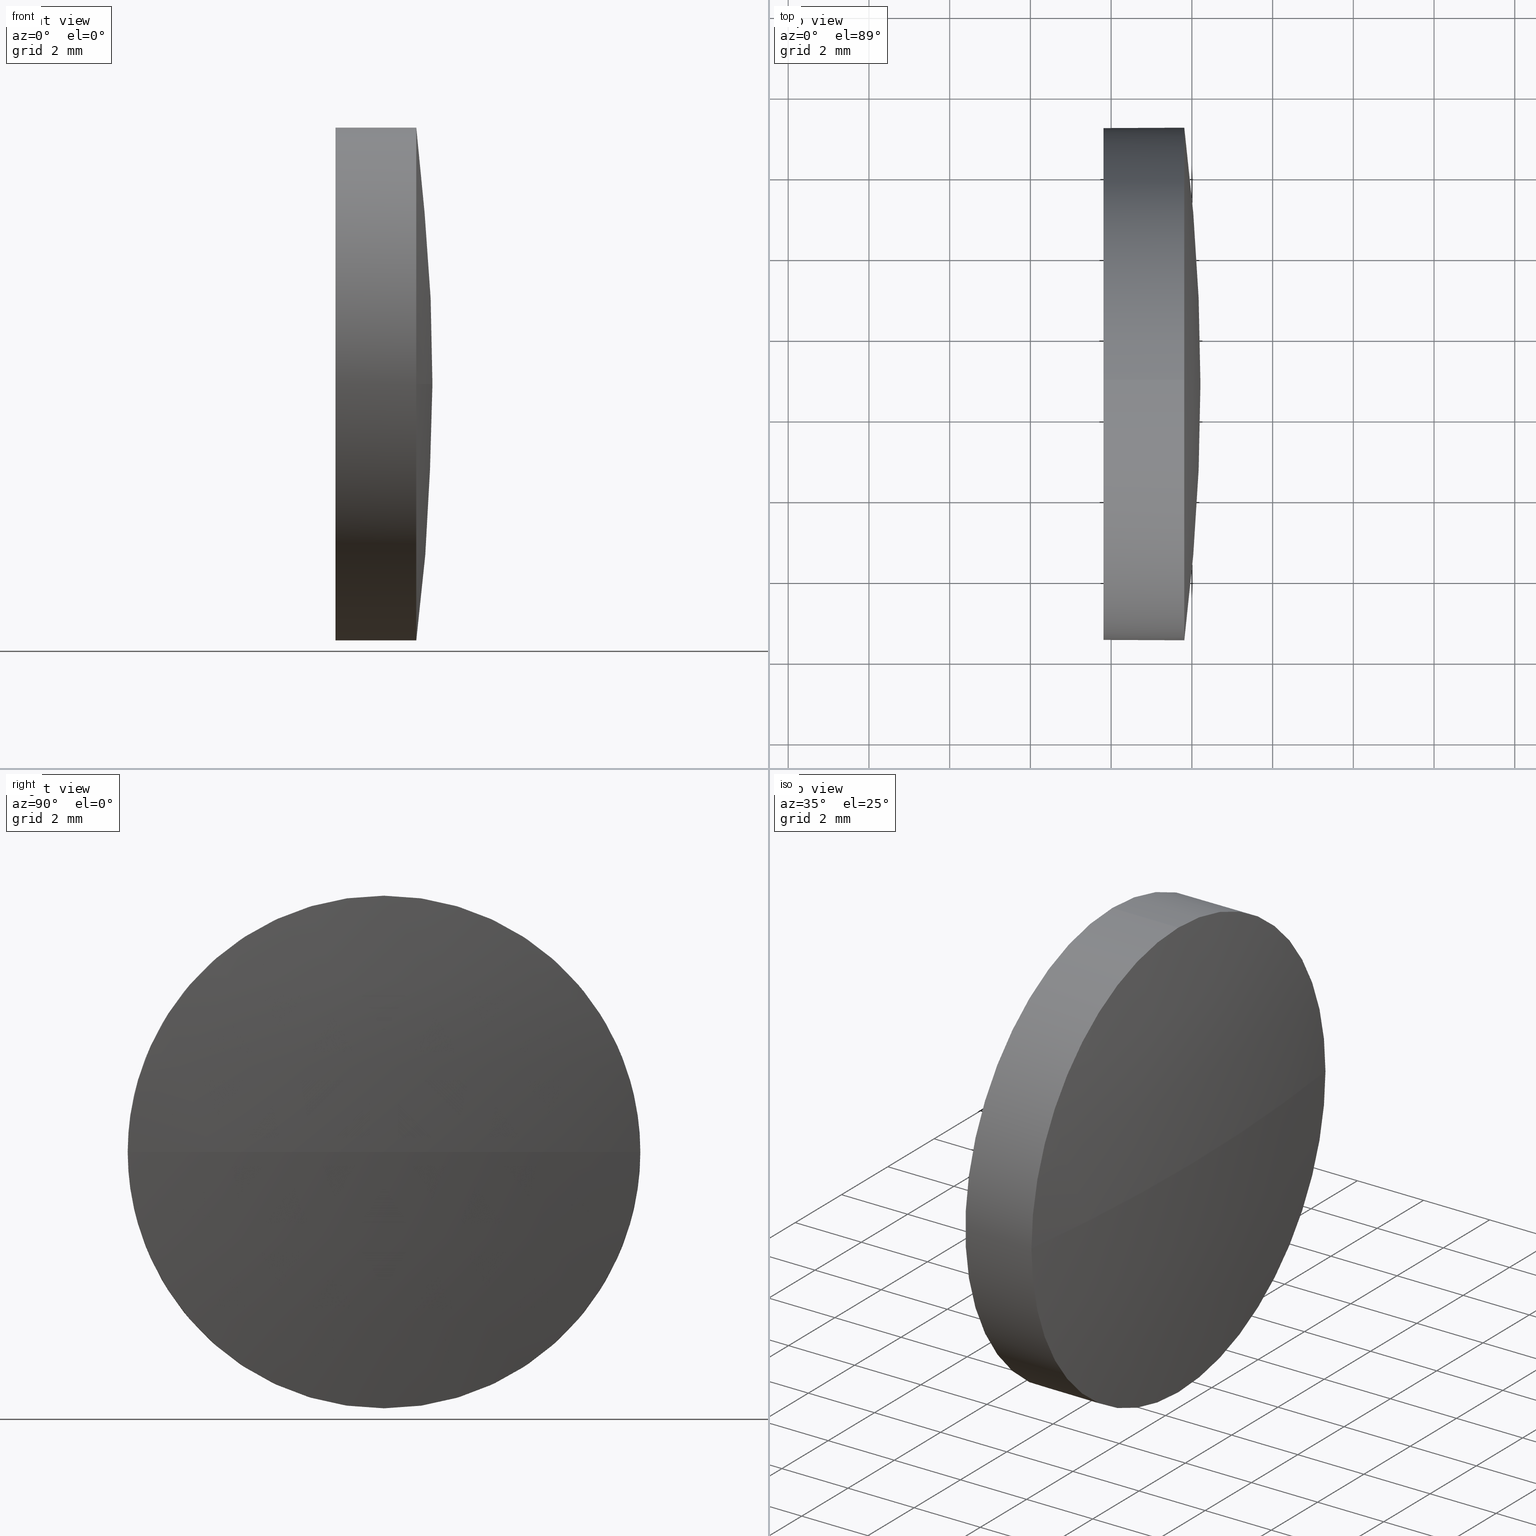
[diagram: canonical four-view strip — front | top / right | iso, engineering-drawing reading convention]
A machine part, canonical four-view strip (front | top / right | iso — engineering-drawing reading convention). The complete STEP part file that produces these views, byte-faithful:
ISO-10303-21;
HEADER;
FILE_DESCRIPTION (( 'STEP AP214' ),
    '1' );
FILE_NAME ('100489.STEP',
    '2019-06-11T09:01:37',
    ( '' ),
    ( '' ),
    'SwSTEP 2.0',
    'SolidWorks 2016',
    '' );
FILE_SCHEMA (( 'AUTOMOTIVE_DESIGN' ));
ENDSEC;

DATA;
#1 = ORIENTED_EDGE ( 'NONE', *, *, #71, .F. ) ;
#2 = CIRCLE ( 'NONE', #34, 50.60312499999986400 ) ;
#3 = EDGE_CURVE ( 'NONE', #176, #165, #163, .T. ) ;
#4 = ADVANCED_FACE ( 'NONE', ( #18 ), #125, .T. ) ;
#5 = FACE_OUTER_BOUND ( 'NONE', #51, .T. ) ;
#6 = DIRECTION ( 'NONE',  ( -1.000000000000000000, -0.0000000000000000000, -0.0000000000000000000 ) ) ;
#7 = DIRECTION ( 'NONE',  ( 0.0000000000000000000, -1.000000000000000000, 0.0000000000000000000 ) ) ;
#8 =( LENGTH_UNIT ( ) NAMED_UNIT ( * ) SI_UNIT ( .MILLI., .METRE. ) );
#9 = SURFACE_STYLE_USAGE ( .BOTH. , #124 ) ;
#10 = FACE_OUTER_BOUND ( 'NONE', #56, .T. ) ;
#11 = APPLICATION_CONTEXT ( 'automotive_design' ) ;
#12 = CARTESIAN_POINT ( 'NONE',  ( 551.8125703644948300, 54.82747999081997400, 6.350000000000001400 ) ) ;
#13 = CIRCLE ( 'NONE', #121, 6.350000000000001400 ) ;
#14 = AXIS2_PLACEMENT_3D ( 'NONE', #182, #46, #99 ) ;
#15 = ORIENTED_EDGE ( 'NONE', *, *, #45, .T. ) ;
#16 = VERTEX_POINT ( 'NONE', #42 ) ;
#17 = PRODUCT_DEFINITION_SHAPE ( 'NONE', 'NONE',  #179 ) ;
#18 = FACE_OUTER_BOUND ( 'NONE', #92, .T. ) ;
#19 = ADVANCED_FACE ( 'NONE', ( #10 ), #120, .T. ) ;
#20 = ORIENTED_EDGE ( 'NONE', *, *, #115, .T. ) ;
#21 = AXIS2_PLACEMENT_3D ( 'NONE', #97, #155, #63 ) ;
#22 = CARTESIAN_POINT ( 'NONE',  ( 0.0000000000000000000, 0.0000000000000000000, 0.0000000000000000000 ) ) ;
#23 = ORIENTED_EDGE ( 'NONE', *, *, #181, .T. ) ;
#24 = UNCERTAINTY_MEASURE_WITH_UNIT (LENGTH_MEASURE( 1.000000000000000100E-005 ), #8, 'distance_accuracy_value', 'NONE');
#25 = AXIS2_PLACEMENT_3D ( 'NONE', #152, #116, #93 ) ;
#26 = SURFACE_STYLE_FILL_AREA ( #94 ) ;
#27 = EDGE_LOOP ( 'NONE', ( #15, #20 ) ) ;
#28 = LINE ( 'NONE', #139, #123 ) ;
#29 = CARTESIAN_POINT ( 'NONE',  ( 553.8125703644948300, 54.82747999081997400, 0.0000000000000000000 ) ) ;
#30 = FILL_AREA_STYLE_COLOUR ( '', #160 ) ;
#31 = ORIENTED_EDGE ( 'NONE', *, *, #146, .T. ) ;
#32 = CARTESIAN_POINT ( 'NONE',  ( 553.8125703644948300, 54.82747999081997400, 6.350000000000001400 ) ) ;
#33 = APPLICATION_PROTOCOL_DEFINITION ( 'draft international standard', 'automotive_design', 1998, #11 ) ;
#34 = AXIS2_PLACEMENT_3D ( 'NONE', #175, #161, #84 ) ;
#35 = CARTESIAN_POINT ( 'NONE',  ( 551.8125703644948300, 54.82747999081997400, 0.0000000000000000000 ) ) ;
#36 = PRESENTATION_STYLE_ASSIGNMENT (( #9 ) ) ;
#37 = MECHANICAL_DESIGN_GEOMETRIC_PRESENTATION_REPRESENTATION (  '', ( #72 ), #134 ) ;
#38 = PRESENTATION_STYLE_ASSIGNMENT (( #110 ) ) ;
#39 = SPHERICAL_SURFACE ( 'NONE', #147, 50.60312499999987100 ) ;
#40 = ORIENTED_EDGE ( 'NONE', *, *, #173, .T. ) ;
#41 = SURFACE_STYLE_FILL_AREA ( #113 ) ;
#42 = CARTESIAN_POINT ( 'NONE',  ( 553.8125703644948300, 54.82747999081997400, -6.350000000000001400 ) ) ;
#43 =( LENGTH_UNIT ( ) NAMED_UNIT ( * ) SI_UNIT ( .MILLI., .METRE. ) );
#44 = ORIENTED_EDGE ( 'NONE', *, *, #3, .T. ) ;
#45 = EDGE_CURVE ( 'NONE', #68, #57, #157, .T. ) ;
#46 = DIRECTION ( 'NONE',  ( -1.000000000000000000, -0.0000000000000000000, -0.0000000000000000000 ) ) ;
#47 =( LENGTH_UNIT ( ) NAMED_UNIT ( * ) SI_UNIT ( .MILLI., .METRE. ) );
#48 = DIRECTION ( 'NONE',  ( 0.0000000000000000000, 0.0000000000000000000, 1.000000000000000000 ) ) ;
#49 = SURFACE_SIDE_STYLE ('',( #26 ) ) ;
#50 = AXIS2_PLACEMENT_3D ( 'NONE', #95, #62, #7 ) ;
#51 = EDGE_LOOP ( 'NONE', ( #114, #168, #122, #1 ) ) ;
#52 = DIRECTION ( 'NONE',  ( -1.000000000000000000, -0.0000000000000000000, -0.0000000000000000000 ) ) ;
#53 = PRODUCT_DEFINITION_FORMATION_WITH_SPECIFIED_SOURCE ( '�κ�', '', #82, .NOT_KNOWN. ) ;
#54 = DIRECTION ( 'NONE',  ( 0.0000000000000000000, 0.0000000000000000000, 1.000000000000000000 ) ) ;
#55 = ORIENTED_EDGE ( 'NONE', *, *, #45, .F. ) ;
#56 = EDGE_LOOP ( 'NONE', ( #135, #31, #55, #137, #23 ) ) ;
#57 = VERTEX_POINT ( 'NONE', #112 ) ;
#58 = AXIS2_PLACEMENT_3D ( 'NONE', #22, #126, #169 ) ;
#59 = PRODUCT_DEFINITION_CONTEXT ( 'detailed design', #83, 'design' ) ;
#60 = DIRECTION ( 'NONE',  ( 0.0000000000000000000, 0.0000000000000000000, 1.000000000000000000 ) ) ;
#61 = DIRECTION ( 'NONE',  ( -1.000000000000000000, -0.0000000000000000000, -0.0000000000000000000 ) ) ;
#62 = DIRECTION ( 'NONE',  ( 0.0000000000000000000, 0.0000000000000000000, 1.000000000000000000 ) ) ;
#63 = DIRECTION ( 'NONE',  ( 0.0000000000000000000, 0.0000000000000000000, 1.000000000000000000 ) ) ;
#64 = DIRECTION ( 'NONE',  ( 0.0000000000000000000, 0.0000000000000000000, 1.000000000000000000 ) ) ;
#65 = DIRECTION ( 'NONE',  ( 0.0000000000000000000, -1.224646799147353200E-016, 1.000000000000000000 ) ) ;
#66 = PLANE ( 'NONE',  #104 ) ;
#67 = CARTESIAN_POINT ( 'NONE',  ( 554.2125703644948100, 54.82747999082007300, 0.0000000000000000000 ) ) ;
#68 = VERTEX_POINT ( 'NONE', #12 ) ;
#69 = AXIS2_PLACEMENT_3D ( 'NONE', #170, #80, #48 ) ;
#70 = VECTOR ( 'NONE', #186, 1000.000000000000000 ) ;
#71 = EDGE_CURVE ( 'NONE', #172, #16, #162, .T. ) ;
#72 = STYLED_ITEM ( 'NONE', ( #38 ), #118 ) ;
#73 = ADVANCED_FACE ( 'NONE', ( #119 ), #76, .T. ) ;
#74 = EDGE_CURVE ( 'NONE', #79, #176, #2, .T. ) ;
#75 = CIRCLE ( 'NONE', #149, 6.350000000000001400 ) ;
#76 = CYLINDRICAL_SURFACE ( 'NONE', #89, 6.350000000000001400 ) ;
#77 = FILL_AREA_STYLE_COLOUR ( '', #90 ) ;
#78 = DIRECTION ( 'NONE',  ( 0.0000000000000000000, -1.000000000000000000, -1.224646799147353200E-016 ) ) ;
#79 = VERTEX_POINT ( 'NONE', #67 ) ;
#80 = DIRECTION ( 'NONE',  ( -1.000000000000000000, -0.0000000000000000000, -0.0000000000000000000 ) ) ;
#81 = DIRECTION ( 'NONE',  ( 0.0000000000000000000, -1.000000000000000000, 0.0000000000000000000 ) ) ;
#82 = PRODUCT ( '100489', '100489', '', ( #127 ) ) ;
#83 = APPLICATION_CONTEXT ( 'automotive_design' ) ;
#84 = DIRECTION ( 'NONE',  ( -1.000000000000000000, 0.0000000000000000000, 0.0000000000000000000 ) ) ;
#85 = CIRCLE ( 'NONE', #145, 50.60312499999987100 ) ;
#86 = MECHANICAL_DESIGN_GEOMETRIC_PRESENTATION_REPRESENTATION (  '', ( #138 ), #108 ) ;
#87 = ORIENTED_EDGE ( 'NONE', *, *, #146, .F. ) ;
#88 = CIRCLE ( 'NONE', #178, 6.350000000000001400 ) ;
#89 = AXIS2_PLACEMENT_3D ( 'NONE', #184, #102, #109 ) ;
#90 = COLOUR_RGB ( '',1.000000000000000000, 1.000000000000000000, 1.000000000000000000 ) ;
#91 = CLOSED_SHELL ( 'NONE', ( #19, #4, #136, #73, #107 ) ) ;
#92 = EDGE_LOOP ( 'NONE', ( #105, #40, #133, #150 ) ) ;
#93 = DIRECTION ( 'NONE',  ( 0.0000000000000000000, 0.0000000000000000000, 1.000000000000000000 ) ) ;
#94 = FILL_AREA_STYLE ('',( #77 ) ) ;
#95 = CARTESIAN_POINT ( 'NONE',  ( 503.6094453644949500, 54.82747999082007300, 0.0000000000000000000 ) ) ;
#96 =( NAMED_UNIT ( * ) PLANE_ANGLE_UNIT ( ) SI_UNIT ( $, .RADIAN. ) );
#97 = CARTESIAN_POINT ( 'NONE',  ( 549.5520392186404000, 54.82747999081997400, 0.0000000000000000000 ) ) ;
#98 = DIRECTION ( 'NONE',  ( -1.000000000000000000, -0.0000000000000000000, -0.0000000000000000000 ) ) ;
#99 = DIRECTION ( 'NONE',  ( 0.0000000000000000000, 0.0000000000000000000, 1.000000000000000000 ) ) ;
#100 = PRODUCT_RELATED_PRODUCT_CATEGORY ( 'part', '', ( #82 ) ) ;
#101 = ORIENTED_EDGE ( 'NONE', *, *, #132, .T. ) ;
#102 = DIRECTION ( 'NONE',  ( -1.000000000000000000, -0.0000000000000000000, -0.0000000000000000000 ) ) ;
#103 = DIRECTION ( 'NONE',  ( 1.000000000000000000, 0.0000000000000000000, 0.0000000000000000000 ) ) ;
#104 = AXIS2_PLACEMENT_3D ( 'NONE', #159, #103, #144 ) ;
#105 = ORIENTED_EDGE ( 'NONE', *, *, #74, .F. ) ;
#106 = SHAPE_DEFINITION_REPRESENTATION ( #17, #118 ) ;
#107 = ADVANCED_FACE ( 'NONE', ( #151 ), #66, .F. ) ;
#108 =( GEOMETRIC_REPRESENTATION_CONTEXT ( 3 ) GLOBAL_UNCERTAINTY_ASSIGNED_CONTEXT ( ( #129 ) ) GLOBAL_UNIT_ASSIGNED_CONTEXT ( ( #43, #143, #171 ) ) REPRESENTATION_CONTEXT ( 'NONE', 'WORKASPACE' ) );
#109 = DIRECTION ( 'NONE',  ( 0.0000000000000000000, 0.0000000000000000000, 1.000000000000000000 ) ) ;
#110 = SURFACE_STYLE_USAGE ( .BOTH. , #49 ) ;
#111 =( GEOMETRIC_REPRESENTATION_CONTEXT ( 3 ) GLOBAL_UNCERTAINTY_ASSIGNED_CONTEXT ( ( #24 ) ) GLOBAL_UNIT_ASSIGNED_CONTEXT ( ( #8, #180, #140 ) ) REPRESENTATION_CONTEXT ( 'NONE', 'WORKASPACE' ) );
#112 = CARTESIAN_POINT ( 'NONE',  ( 551.8125703644948300, 54.82747999081997400, -6.350000000000001400 ) ) ;
#113 = FILL_AREA_STYLE ('',( #30 ) ) ;
#114 = ORIENTED_EDGE ( 'NONE', *, *, #173, .F. ) ;
#115 = EDGE_CURVE ( 'NONE', #57, #68, #88, .T. ) ;
#116 = DIRECTION ( 'NONE',  ( -1.000000000000000000, -0.0000000000000000000, -0.0000000000000000000 ) ) ;
#117 = LINE ( 'NONE', #130, #70 ) ;
#118 = ADVANCED_BREP_SHAPE_REPRESENTATION ( '100489', ( #148, #58 ), #111 ) ;
#119 = FACE_OUTER_BOUND ( 'NONE', #142, .T. ) ;
#120 = CYLINDRICAL_SURFACE ( 'NONE', #21, 6.350000000000001400 ) ;
#121 = AXIS2_PLACEMENT_3D ( 'NONE', #29, #61, #60 ) ;
#122 = ORIENTED_EDGE ( 'NONE', *, *, #131, .F. ) ;
#123 = VECTOR ( 'NONE', #6, 1000.000000000000000 ) ;
#124 = SURFACE_SIDE_STYLE ('',( #41 ) ) ;
#125 = SPHERICAL_SURFACE ( 'NONE', #50, 50.60312499999987100 ) ;
#126 = DIRECTION ( 'NONE',  ( 0.0000000000000000000, 0.0000000000000000000, 1.000000000000000000 ) ) ;
#127 = PRODUCT_CONTEXT ( 'NONE', #11, 'mechanical' ) ;
#128 = ORIENTED_EDGE ( 'NONE', *, *, #115, .F. ) ;
#129 = UNCERTAINTY_MEASURE_WITH_UNIT (LENGTH_MEASURE( 1.000000000000000100E-005 ), #43, 'distance_accuracy_value', 'NONE');
#130 = CARTESIAN_POINT ( 'NONE',  ( 549.5520392186404000, 54.82747999081997400, 6.350000000000001400 ) ) ;
#131 = EDGE_CURVE ( 'NONE', #16, #176, #13, .T. ) ;
#132 = EDGE_CURVE ( 'NONE', #165, #68, #117, .T. ) ;
#133 = ORIENTED_EDGE ( 'NONE', *, *, #181, .F. ) ;
#134 =( GEOMETRIC_REPRESENTATION_CONTEXT ( 3 ) GLOBAL_UNCERTAINTY_ASSIGNED_CONTEXT ( ( #153 ) ) GLOBAL_UNIT_ASSIGNED_CONTEXT ( ( #47, #96, #156 ) ) REPRESENTATION_CONTEXT ( 'NONE', 'WORKASPACE' ) );
#135 = ORIENTED_EDGE ( 'NONE', *, *, #71, .T. ) ;
#136 = ADVANCED_FACE ( 'NONE', ( #5 ), #39, .T. ) ;
#137 = ORIENTED_EDGE ( 'NONE', *, *, #132, .F. ) ;
#138 = STYLED_ITEM ( 'NONE', ( #36 ), #148 ) ;
#139 = CARTESIAN_POINT ( 'NONE',  ( 549.5520392186404000, 54.82747999081997400, -6.350000000000001400 ) ) ;
#140 =( NAMED_UNIT ( * ) SI_UNIT ( $, .STERADIAN. ) SOLID_ANGLE_UNIT ( ) );
#141 = CARTESIAN_POINT ( 'NONE',  ( 553.8125703644948300, 54.82747999081997400, 0.0000000000000000000 ) ) ;
#142 = EDGE_LOOP ( 'NONE', ( #87, #177, #44, #101, #128 ) ) ;
#143 =( NAMED_UNIT ( * ) PLANE_ANGLE_UNIT ( ) SI_UNIT ( $, .RADIAN. ) );
#144 = DIRECTION ( 'NONE',  ( 0.0000000000000000000, 0.0000000000000000000, -1.000000000000000000 ) ) ;
#145 = AXIS2_PLACEMENT_3D ( 'NONE', #154, #65, #78 ) ;
#146 = EDGE_CURVE ( 'NONE', #16, #57, #28, .T. ) ;
#147 = AXIS2_PLACEMENT_3D ( 'NONE', #174, #158, #81 ) ;
#148 = MANIFOLD_SOLID_BREP ( '��ת2', #91 ) ;
#149 = AXIS2_PLACEMENT_3D ( 'NONE', #141, #98, #64 ) ;
#150 = ORIENTED_EDGE ( 'NONE', *, *, #3, .F. ) ;
#151 = FACE_OUTER_BOUND ( 'NONE', #27, .T. ) ;
#152 = CARTESIAN_POINT ( 'NONE',  ( 551.8125703644948300, 54.82747999081997400, 0.0000000000000000000 ) ) ;
#153 = UNCERTAINTY_MEASURE_WITH_UNIT (LENGTH_MEASURE( 1.000000000000000100E-005 ), #47, 'distance_accuracy_value', 'NONE');
#154 = CARTESIAN_POINT ( 'NONE',  ( 503.6094453644949500, 54.82747999082007300, 0.0000000000000000000 ) ) ;
#155 = DIRECTION ( 'NONE',  ( -1.000000000000000000, -0.0000000000000000000, -0.0000000000000000000 ) ) ;
#156 =( NAMED_UNIT ( * ) SI_UNIT ( $, .STERADIAN. ) SOLID_ANGLE_UNIT ( ) );
#157 = CIRCLE ( 'NONE', #25, 6.350000000000001400 ) ;
#158 = DIRECTION ( 'NONE',  ( 0.0000000000000000000, 0.0000000000000000000, 1.000000000000000000 ) ) ;
#159 = CARTESIAN_POINT ( 'NONE',  ( 551.8125703644948300, 54.82747999081997400, 0.0000000000000000000 ) ) ;
#160 = COLOUR_RGB ( '',1.000000000000000000, 1.000000000000000000, 1.000000000000000000 ) ;
#161 = DIRECTION ( 'NONE',  ( 0.0000000000000000000, 0.0000000000000000000, -1.000000000000000000 ) ) ;
#162 = CIRCLE ( 'NONE', #69, 6.350000000000001400 ) ;
#163 = CIRCLE ( 'NONE', #14, 6.350000000000001400 ) ;
#164 = PRESENTATION_LAYER_ASSIGNMENT (  '', '', ( #72 ) ) ;
#165 = VERTEX_POINT ( 'NONE', #32 ) ;
#166 = PRESENTATION_LAYER_ASSIGNMENT (  '', '', ( #138 ) ) ;
#167 = CARTESIAN_POINT ( 'NONE',  ( 553.8125703644948300, 48.47747999082014300, 0.0000000000000000000 ) ) ;
#168 = ORIENTED_EDGE ( 'NONE', *, *, #74, .T. ) ;
#169 = DIRECTION ( 'NONE',  ( 1.000000000000000000, 0.0000000000000000000, 0.0000000000000000000 ) ) ;
#170 = CARTESIAN_POINT ( 'NONE',  ( 553.8125703644948300, 54.82747999081997400, 0.0000000000000000000 ) ) ;
#171 =( NAMED_UNIT ( * ) SI_UNIT ( $, .STERADIAN. ) SOLID_ANGLE_UNIT ( ) );
#172 = VERTEX_POINT ( 'NONE', #183 ) ;
#173 = EDGE_CURVE ( 'NONE', #79, #172, #85, .T. ) ;
#174 = CARTESIAN_POINT ( 'NONE',  ( 503.6094453644949500, 54.82747999082007300, 0.0000000000000000000 ) ) ;
#175 = CARTESIAN_POINT ( 'NONE',  ( 503.6094453644949500, 54.82747999082007300, 0.0000000000000000000 ) ) ;
#176 = VERTEX_POINT ( 'NONE', #167 ) ;
#177 = ORIENTED_EDGE ( 'NONE', *, *, #131, .T. ) ;
#178 = AXIS2_PLACEMENT_3D ( 'NONE', #35, #52, #54 ) ;
#179 = PRODUCT_DEFINITION ( 'δ֪', '', #53, #59 ) ;
#180 =( NAMED_UNIT ( * ) PLANE_ANGLE_UNIT ( ) SI_UNIT ( $, .RADIAN. ) );
#181 = EDGE_CURVE ( 'NONE', #165, #172, #75, .T. ) ;
#182 = CARTESIAN_POINT ( 'NONE',  ( 553.8125703644948300, 54.82747999081997400, 0.0000000000000000000 ) ) ;
#183 = CARTESIAN_POINT ( 'NONE',  ( 553.8125703644948300, 61.17747999081989700, 7.776507174585485100E-016 ) ) ;
#184 = CARTESIAN_POINT ( 'NONE',  ( 549.5520392186404000, 54.82747999081997400, 0.0000000000000000000 ) ) ;
#185 = APPLICATION_PROTOCOL_DEFINITION ( 'draft international standard', 'automotive_design', 1998, #83 ) ;
#186 = DIRECTION ( 'NONE',  ( -1.000000000000000000, -0.0000000000000000000, -0.0000000000000000000 ) ) ;
ENDSEC;
END-ISO-10303-21;
